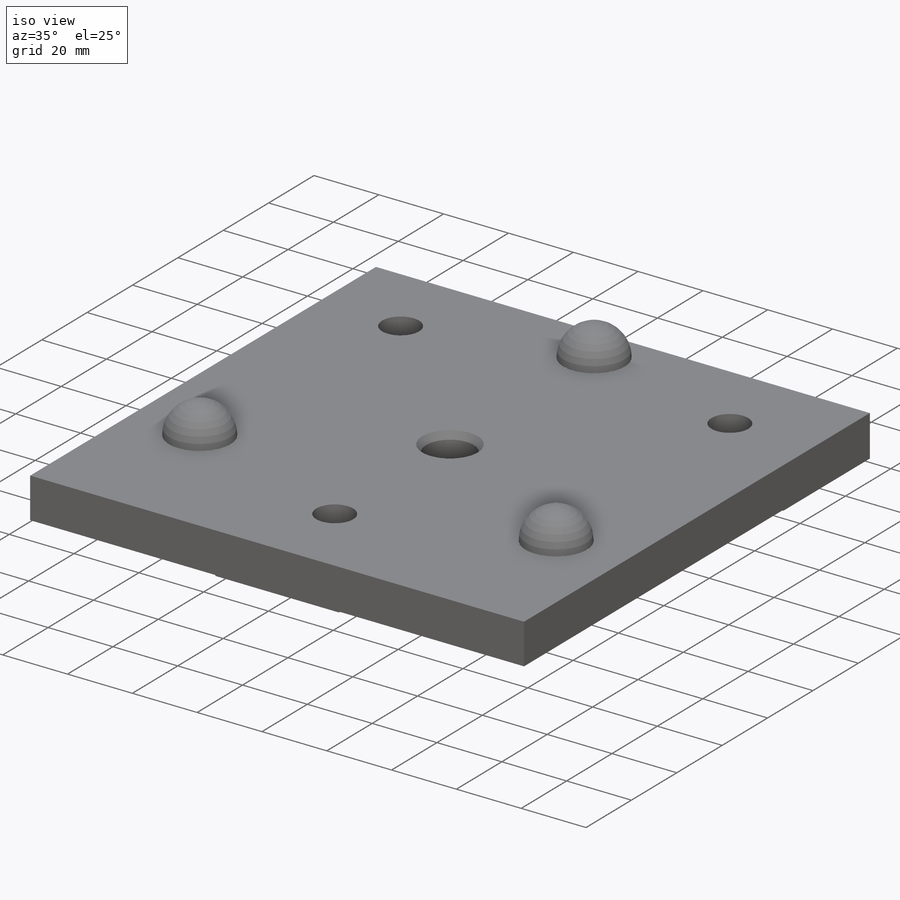
[diagram: iso view]
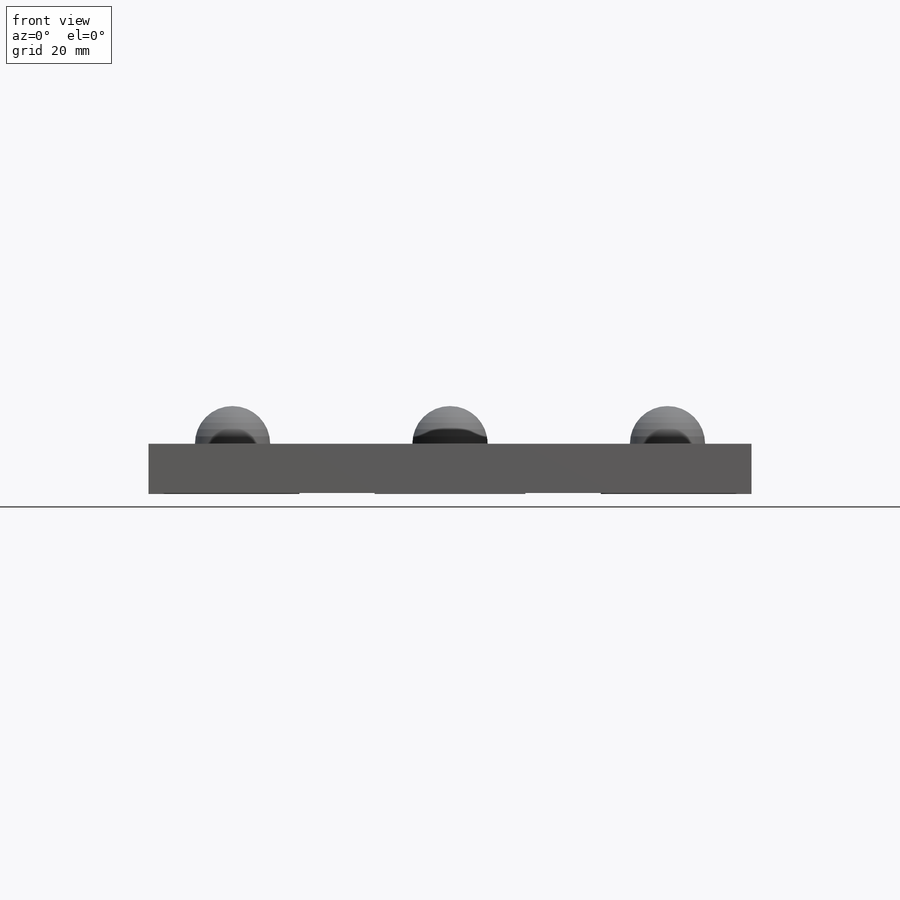
[diagram: front view]
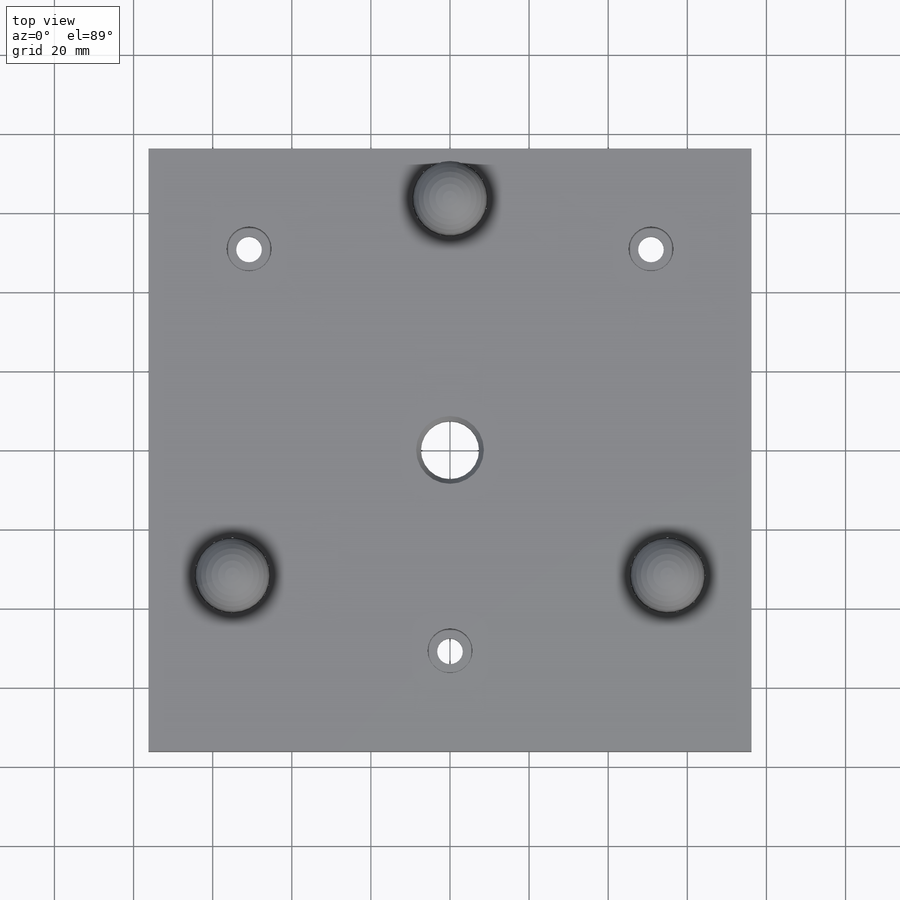
[diagram: top view]
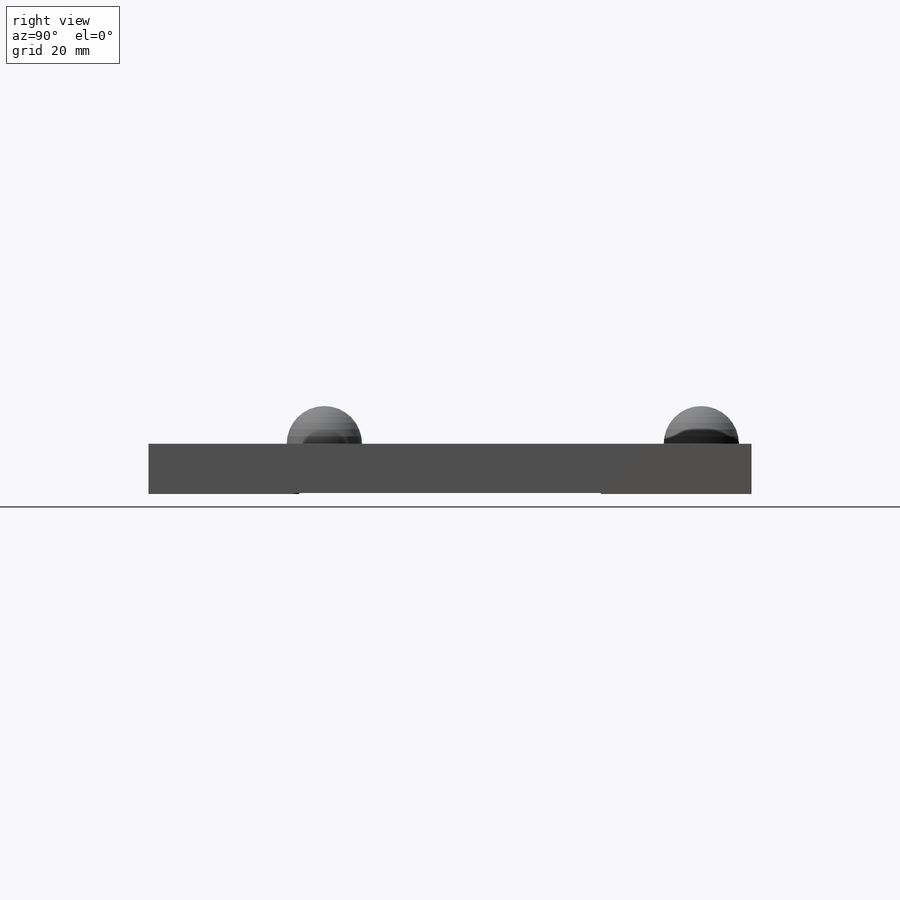
[diagram: right view]
SOLIDWORKS PART (.sldprt)
format: sldprt  version: not decoded by parser v0  size: 579,584 bytes
history: native  units: mm
features: sketch x9, plane x3, hole x2, cut_extrude x2, material x1, extrude x1, thread x1, revolve x1, pattern_circular x1, fillet x1 + 3 further entries (+8 scaffold rows collapsed)
feature tree (33):
  scaffold x8  (default folders/planes/origin — collapsed)
  material  "Material <not specified>"
  plane  "Plane X-Y"
  plane  "Plane X-Z"
  plane  "Plane Y-Z"
  "Axis - Y"
  "Axis - Z"
  sketch  "Sketch1"  dims[D1=152.4mm]
  extrude  "Extrude1"  Depth=12.7mm
  hole  "5/8-18 Tapped Hole1"  Diameter=14.68374mm Depth=12.7mm
  sketch  "Sketch3"
  sketch  "Sketch4"  dims[hole-wizard template sketch: 54 standard entries collapsed; hole parameters above]
  thread  "Hole Thread1"  Diameter=15.875mm  [1 undecoded]
  sketch  "Sketch11"  dims[D1=63.5mm D2=19.05mm D3=~7.909693mm]
  revolve  "Revolve1"  Angle=360deg
  hole  "Hole1"  Diameter=6.477mm Depth=12.7mm
  sketch  "Sketch14"  dims[D1=50.8mm]
  sketch  "Sketch13"  dims[Diameter=6.477mm Depth=12.7mm C-Bore Diameter=11.3792mm C-Bore Depth=6.604mm]
  sketch  "Sketch16"  dims[D1=3.81mm]
  cut_extrude  "Cut-Extrude3"  Depth=0.127mm
  pattern_circular  "CirPattern1"  Count=3 Angle=360deg
  sketch  "Sketch17"  dims[D1=38.1mm]
  cut_extrude  "Cut-Extrude4"  Depth=0.254mm
  fillet  "Fillet1"  Radius=2.032mm
  sketch  "Sketch18"  dims[D1=101.6mm D2=25.4mm D3=101.6mm]
  "Sketch-Pattern1"
decode coverage: 17 of 18 modeling features carry decoded parameters; 3 rows unclassified (native names shown)
note: ~ marks probable driven/reference dimensions
note: 1 parameter value undecoded
note: suppression state not decoded; provenance and decode notes live in map.json
